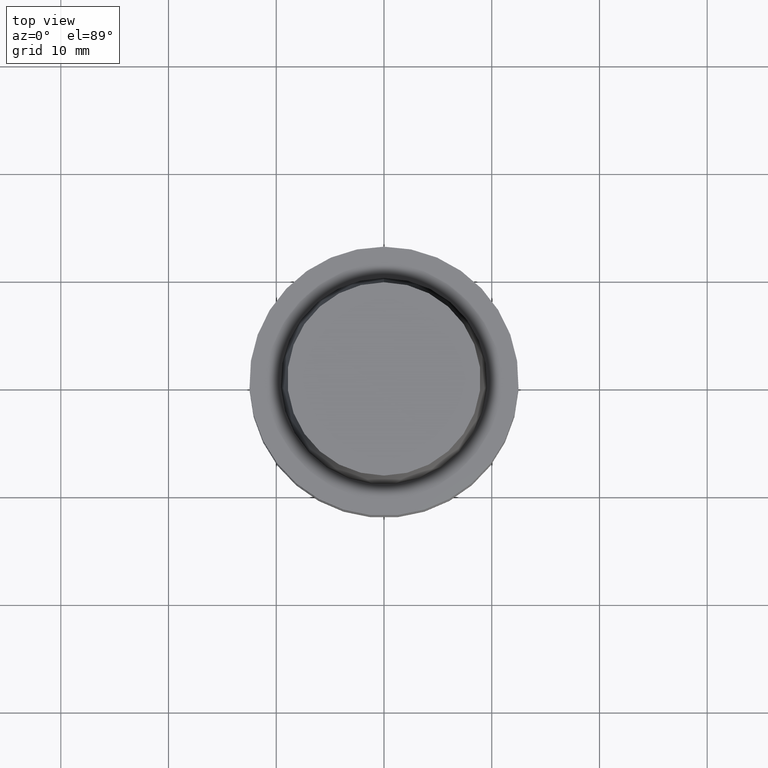
[diagram: clean part render]
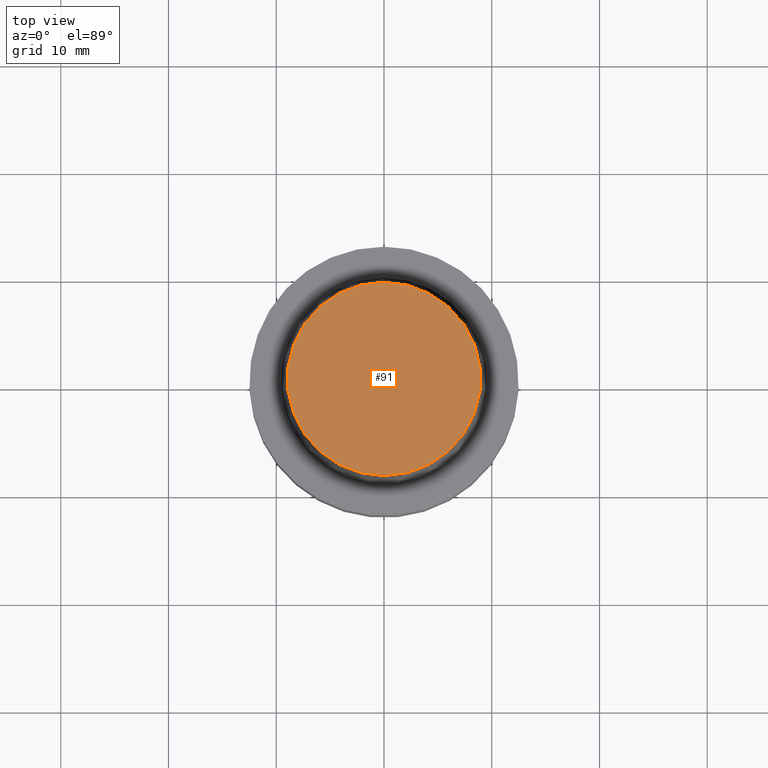
[diagram: same view with one face highlighted and labeled with its STEP entity id]
A machine part, top view. The second image highlights one B-rep face of the part: STEP entity #91.
In plain terms, the highlighted planar face has unit normal (-0, -0, 1).
Its self-contained STEP definition (entity closure, byte-faithful):
#91=ADVANCED_FACE('',(#141),#142,.T.);
#141=FACE_OUTER_BOUND('',#193,.T.);
#142=PLANE('',#194);
#193=EDGE_LOOP('',(#277));
#194=AXIS2_PLACEMENT_3D('',#278,#279,#280);
#277=ORIENTED_EDGE('',*,*,#302,.F.);
#278=CARTESIAN_POINT('',(-7.9602041944578E-016,4.4875,13.0));
#279=DIRECTION('',(-6.12323399573677E-017,-1.22464679914735E-016,1.0));
#280=DIRECTION('',(1.23259516440783E-032,-1.0,-1.22464679914735E-016));
#302=EDGE_CURVE('',#335,#335,#336,.T.);
#335=VERTEX_POINT('',#369);
#336=CIRCLE('',#370,8.975);
#369=CARTESIAN_POINT('',(-7.9602041944578E-016,8.975,13.0));
#370=AXIS2_PLACEMENT_3D('',#419,#420,#421);
#419=CARTESIAN_POINT('',(-7.9602041944578E-016,-1.59204083889156E-015,13.0));
#420=DIRECTION('',(6.12323399573676E-017,1.22464679914735E-016,-1.0));
#421=DIRECTION('',(-1.23259516440783E-032,1.0,1.22464679914735E-016));